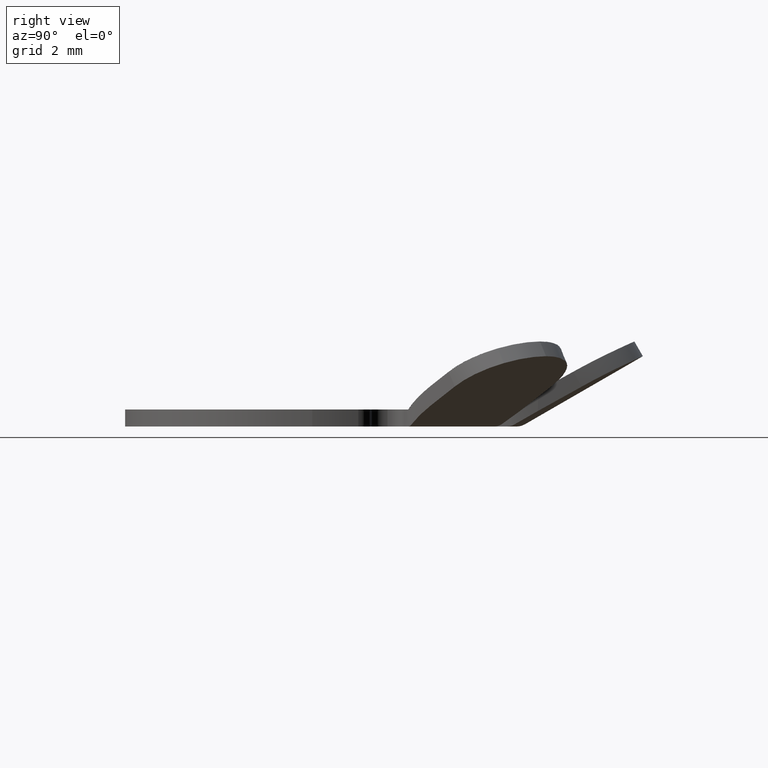
[diagram: clean part render]
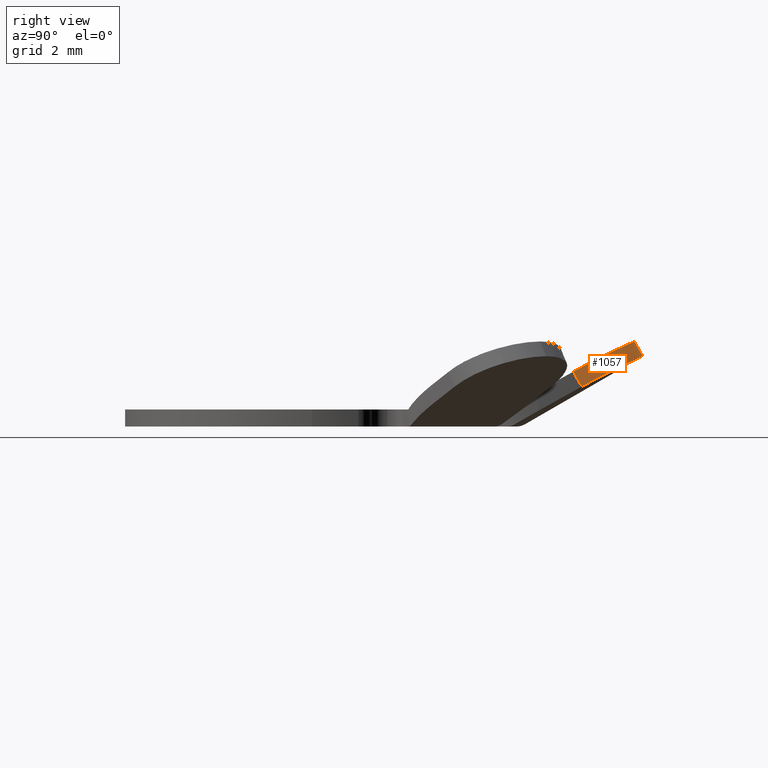
[diagram: same view with one face highlighted and labeled with its STEP entity id]
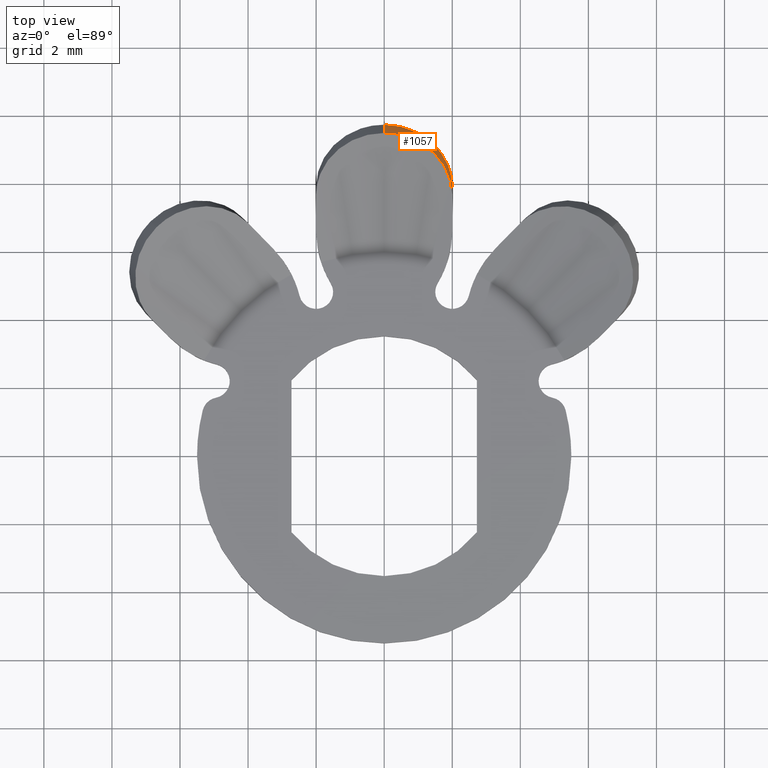
[diagram: same view with one face highlighted and labeled with its STEP entity id]
A machine part, right view. The second image highlights one B-rep face of the part: STEP entity #1057.
A second angle (top view) of the same face is appended — the face is thin or edge-on in the first view.
In plain terms, the highlighted cylindrical surface (partial cylindrical patch) has radius 2 mm, axis along (0, -0.5, 0.866).
Its self-contained STEP definition (entity closure, byte-faithful):
#12 = VERTEX_POINT ( 'NONE', #1564 ) ;
#13 = CARTESIAN_POINT ( 'NONE',  ( 1.946830314797079100, 8.382850198737834500, 1.426511074685421700 ) ) ;
#30 = VECTOR ( 'NONE', #451, 1000.000000000000000 ) ;
#75 = CARTESIAN_POINT ( 'NONE',  ( 2.000000000000000400, 7.678616204456560000, 1.592551447472813300 ) ) ;
#79 = DIRECTION ( 'NONE',  ( 7.720778915076349500E-017, -0.5000000000000004400, 0.8660254037844383700 ) ) ;
#84 = VERTEX_POINT ( 'NONE', #118 ) ;
#95 = CARTESIAN_POINT ( 'NONE',  ( 0.5270526830565756000, 9.415151564547628000, 2.478378740408396100 ) ) ;
#118 = CARTESIAN_POINT ( 'NONE',  ( 5.038360698976191000E-016, 9.464101615137755300, 2.500000000000000000 ) ) ;
#136 = CARTESIAN_POINT ( 'NONE',  ( 4.652321753222373300E-016, 9.714101615137755300, 2.066987298107780800 ) ) ;
#208 = DIRECTION ( 'NONE',  ( 7.720778915076349500E-017, -0.5000000000000004400, 0.8660254037844383700 ) ) ;
#216 = CARTESIAN_POINT ( 'NONE',  ( 1.612946104742863700E-015, 2.490640055330643800E-031, 14.89230484541325000 ) ) ;
#259 = CYLINDRICAL_SURFACE ( 'NONE', #1101, 2.000000000000000000 ) ;
#340 = DIRECTION ( 'NONE',  ( 0.0000000000000000000, -0.8660254037844383700, -0.5000000000000004400 ) ) ;
#359 = CARTESIAN_POINT ( 'NONE',  ( 2.000000000000001300, 7.783322196858515300, 1.675555558759341800 ) ) ;
#386 = CARTESIAN_POINT ( 'NONE',  ( 0.8868990267256752200, 9.528533915536820900, 1.983162529111307300 ) ) ;
#451 = DIRECTION ( 'NONE',  ( -7.720778915076349500E-017, 0.5000000000000004400, -0.8660254037844383700 ) ) ;
#492 = CARTESIAN_POINT ( 'NONE',  ( 1.506981960567371300, 8.844662991418701400, 2.215609854197267300 ) ) ;
#515 = CARTESIAN_POINT ( 'NONE',  ( 2.000000000000000400, 7.667916873272000400, 1.611083232691144400 ) ) ;
#517 = CARTESIAN_POINT ( 'NONE',  ( 5.038360698976191000E-016, 9.464101615137755300, 2.500000000000000000 ) ) ;
#590 = VERTEX_POINT ( 'NONE', #515 ) ;
#632 = CARTESIAN_POINT ( 'NONE',  ( 1.230736825612301000, 9.095713797270201800, 2.333804299388305000 ) ) ;
#638 = CARTESIAN_POINT ( 'NONE',  ( 1.936234573437209900, 8.123502461709414000, 1.857296533181714400 ) ) ;
#651 = CARTESIAN_POINT ( 'NONE',  ( 1.321772278592611600, 9.263507000128287300, 1.860673370577882400 ) ) ;
#658 = CARTESIAN_POINT ( 'NONE',  ( 0.6448103638504588700, 9.620339491361718800, 2.024853207405790100 ) ) ;
#691 = B_SPLINE_CURVE_WITH_KNOTS ( 'NONE', 3,
 ( #1294, #359, #1160, #638, #1018, #898, #1696, #761, #492, #632, #1421, #95, #1553, #517 ),
 .UNSPECIFIED., .F., .F.,
 ( 4, 2, 2, 2, 2, 2, 4 ),
 ( 1.636266194461978300E-016, 0.0003909162933416634600, 0.0007818325866831633000, 0.001172748880024663500, 0.001563665173366164000, 0.002345497760049163100, 0.003127330346732163200 ),
 .UNSPECIFIED. ) ;
#761 = CARTESIAN_POINT ( 'NONE',  ( 1.591281213757572500, 8.751586985758029500, 2.171214543907739700 ) ) ;
#824 = EDGE_LOOP ( 'NONE', ( #863, #1229, #1455, #1462 ) ) ;
#840 = CARTESIAN_POINT ( 'NONE',  ( 0.2621374938214962600, 9.702193059884216100, 2.061663712685248000 ) ) ;
#863 = ORIENTED_EDGE ( 'NONE', *, *, #1122, .F. ) ;
#887 = VECTOR ( 'NONE', #208, 1000.000000000000000 ) ;
#898 = CARTESIAN_POINT ( 'NONE',  ( 1.797528999920219500, 8.452682180390164400, 2.025010381715078200 ) ) ;
#919 = CARTESIAN_POINT ( 'NONE',  ( 1.218971516009434100, 9.340242163794693300, 1.896459609540802600 ) ) ;
#999 = VERTEX_POINT ( 'NONE', #1639 ) ;
#1018 = CARTESIAN_POINT ( 'NONE',  ( 1.897798286009633400, 8.236418303981732700, 1.915618110957500100 ) ) ;
#1049 = LINE ( 'NONE', #1205, #30 ) ;
#1057 = ADVANCED_FACE ( 'NONE', ( #1679 ), #259, .T. ) ;
#1062 = CARTESIAN_POINT ( 'NONE',  ( 1.598218016542329200, 9.012946373040350100, 1.741994427705389100 ) ) ;
#1095 = CARTESIAN_POINT ( 'NONE',  ( 0.1321812782643369500, 9.714101615137755300, 2.066987298107780800 ) ) ;
#1101 = AXIS2_PLACEMENT_3D ( 'NONE', #216, #79, #340 ) ;
#1122 = EDGE_CURVE ( 'NONE', #999, #590, #1630, .T. ) ;
#1160 = CARTESIAN_POINT ( 'NONE',  ( 1.987025946300849300, 7.897548367134243500, 1.737560717398837900 ) ) ;
#1168 = EDGE_CURVE ( 'NONE', #590, #84, #691, .T. ) ;
#1181 = CARTESIAN_POINT ( 'NONE',  ( 1.001703573948177400, 9.472430317977046600, 1.957547272769354800 ) ) ;
#1205 = CARTESIAN_POINT ( 'NONE',  ( 1.965240793903529700E-015, 3.670093246929759300E-033, 18.89230484541325000 ) ) ;
#1229 = ORIENTED_EDGE ( 'NONE', *, *, #1301, .F. ) ;
#1248 = CARTESIAN_POINT ( 'NONE',  ( 1.747157146478916000, 8.812022587550465900, 1.644553075667348500 ) ) ;
#1278 = EDGE_CURVE ( 'NONE', #84, #12, #1049, .T. ) ;
#1294 = CARTESIAN_POINT ( 'NONE',  ( 2.000000000000000400, 7.667916873272000400, 1.611083232691144400 ) ) ;
#1301 = EDGE_CURVE ( 'NONE', #12, #999, #1674, .T. ) ;
#1321 = CARTESIAN_POINT ( 'NONE',  ( 2.000000000000000400, 7.919894279382615900, 1.174645562948192200 ) ) ;
#1421 = CARTESIAN_POINT ( 'NONE',  ( 1.007965033450411300, 9.232054906265215500, 2.395803391742838100 ) ) ;
#1455 = ORIENTED_EDGE ( 'NONE', *, *, #1278, .F. ) ;
#1462 = ORIENTED_EDGE ( 'NONE', *, *, #1168, .F. ) ;
#1553 = CARTESIAN_POINT ( 'NONE',  ( 0.2643809373821088800, 9.464101615137755300, 2.500000000000000000 ) ) ;
#1564 = CARTESIAN_POINT ( 'NONE',  ( 4.652321753222373300E-016, 9.714101615137755300, 2.066987298107780800 ) ) ;
#1588 = CARTESIAN_POINT ( 'NONE',  ( 1.999999999999999600, 8.150572136036876400, 1.303773813422299400 ) ) ;
#1630 = LINE ( 'NONE', #75, #887 ) ;
#1639 = CARTESIAN_POINT ( 'NONE',  ( 2.000000000000000400, 7.919894279382615900, 1.174645562948192200 ) ) ;
#1641 = CARTESIAN_POINT ( 'NONE',  ( 0.5177862900669010200, 9.655597482698151900, 2.040725478601719300 ) ) ;
#1674 = B_SPLINE_CURVE_WITH_KNOTS ( 'NONE', 3,
 ( #136, #1095, #840, #1641, #658, #386, #1181, #919, #651, #1062, #1248, #13, #1588, #1321 ),
 .UNSPECIFIED., .F., .F.,
 ( 4, 2, 2, 2, 2, 2, 4 ),
 ( 0.0000000000000000000, 0.0003908976849581179200, 0.0007817953699162358300, 0.001172693054874353400, 0.001563590739832471200, 0.002345386109748707600, 0.003127181479664943300 ),
 .UNSPECIFIED. ) ;
#1679 = FACE_OUTER_BOUND ( 'NONE', #824, .T. ) ;
#1696 = CARTESIAN_POINT ( 'NONE',  ( 1.736186742338958800, 8.555763882539785900, 2.075984545090065100 ) ) ;